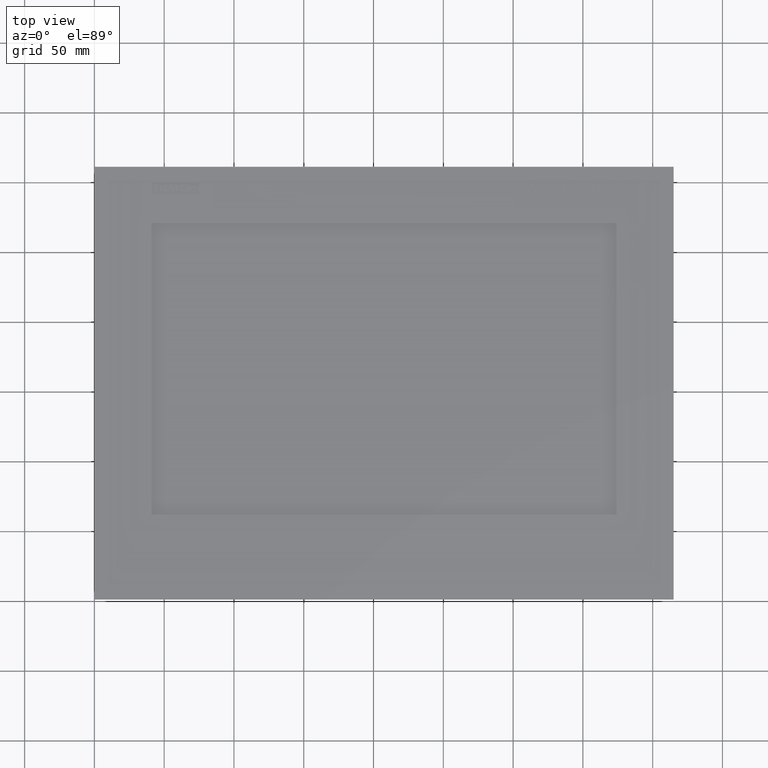
[diagram: clean part render]
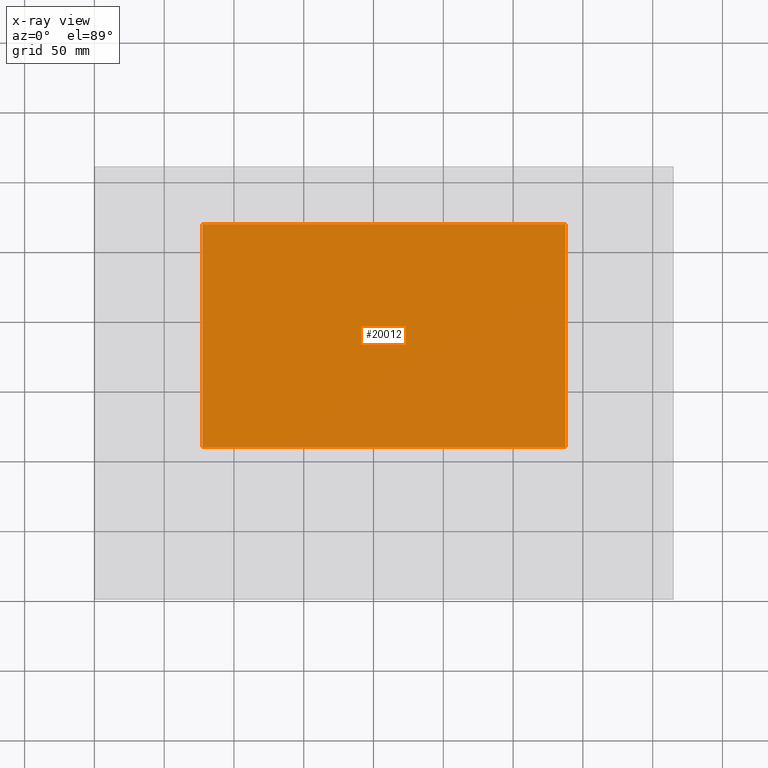
[diagram: x-ray — body ghosted, one internal face saturated and labeled with its STEP entity id]
A machine part, top view, then the same camera in x-ray: the body is ghosted and one INTERNAL B-rep face — a face not visible from any outside direction — is saturated and labeled: STEP entity #20012.
In plain terms, the highlighted planar face has unit normal (0, 0, 1).
Its self-contained STEP definition (entity closure, byte-faithful):
#3791=LINE('',#70266,#9282);
#3794=LINE('',#70272,#9285);
#3797=LINE('',#70278,#9288);
#3800=LINE('',#70283,#9291);
#9282=VECTOR('',#57569,1.);
#9285=VECTOR('',#57574,1.);
#9288=VECTOR('',#57579,1.);
#9291=VECTOR('',#57584,1.);
#15025=FACE_OUTER_BOUND('',#24038,.T.);
#17662=PLANE('',#54030);
#20012=ADVANCED_FACE('',(#15025),#17662,.F.);
#24038=EDGE_LOOP('',(#27442,#27443,#27444,#27445));
#27442=ORIENTED_EDGE('',*,*,#46218,.F.);
#27443=ORIENTED_EDGE('',*,*,#46227,.F.);
#27444=ORIENTED_EDGE('',*,*,#46224,.F.);
#27445=ORIENTED_EDGE('',*,*,#46221,.F.);
#41454=VERTEX_POINT('',#70265);
#41455=VERTEX_POINT('',#70267);
#41457=VERTEX_POINT('',#70273);
#41459=VERTEX_POINT('',#70279);
#46218=EDGE_CURVE('',#41454,#41455,#3791,.T.);
#46221=EDGE_CURVE('',#41455,#41457,#3794,.T.);
#46224=EDGE_CURVE('',#41457,#41459,#3797,.T.);
#46227=EDGE_CURVE('',#41459,#41454,#3800,.T.);
#54030=AXIS2_PLACEMENT_3D('',#70285,#57587,#57588);
#57569=DIRECTION('',(0.,-1.,0.));
#57574=DIRECTION('',(1.,0.,0.));
#57579=DIRECTION('',(0.,1.,0.));
#57584=DIRECTION('',(-1.,0.,0.));
#57587=DIRECTION('',(0.,0.,1.));
#57588=DIRECTION('',(1.,0.,0.));
#70265=CARTESIAN_POINT('',(-130.,45.4,-37.5));
#70266=CARTESIAN_POINT('',(-130.,45.4,-37.5));
#70267=CARTESIAN_POINT('',(-130.,-114.6,-37.5));
#70272=CARTESIAN_POINT('',(-130.,-114.6,-37.5));
#70273=CARTESIAN_POINT('',(130.,-114.6,-37.5));
#70278=CARTESIAN_POINT('',(130.,-114.6,-37.5));
#70279=CARTESIAN_POINT('',(130.,45.4,-37.5));
#70283=CARTESIAN_POINT('',(130.,45.4,-37.5));
#70285=CARTESIAN_POINT('',(-130.,-114.6,-37.5));